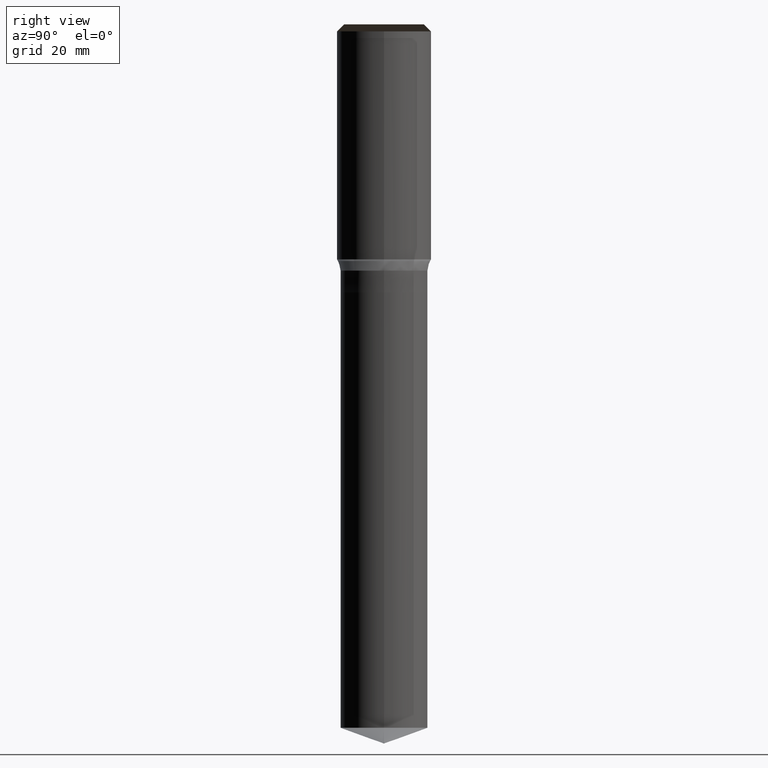
[diagram: clean part render]
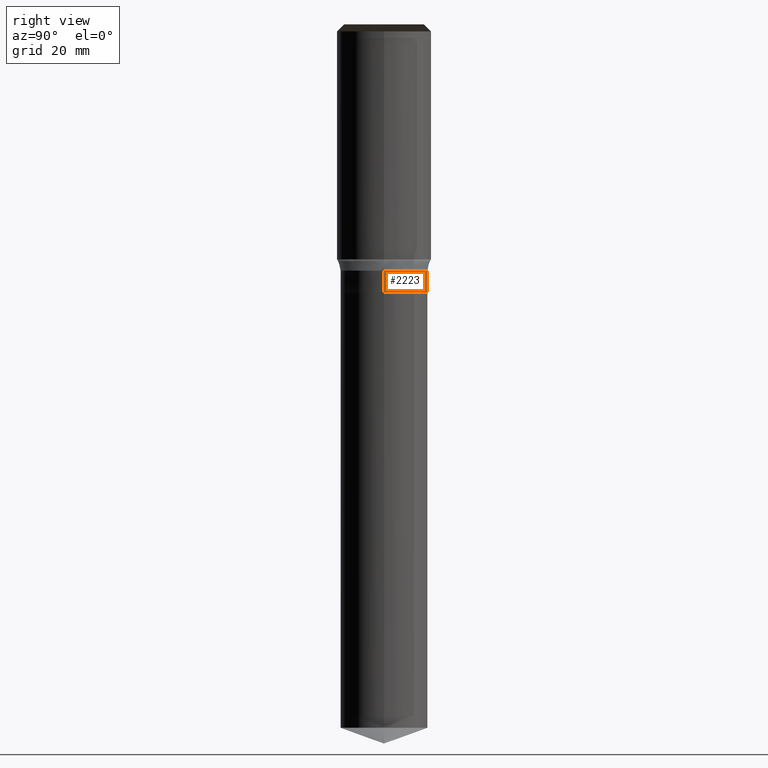
[diagram: same view with one face highlighted and labeled with its STEP entity id]
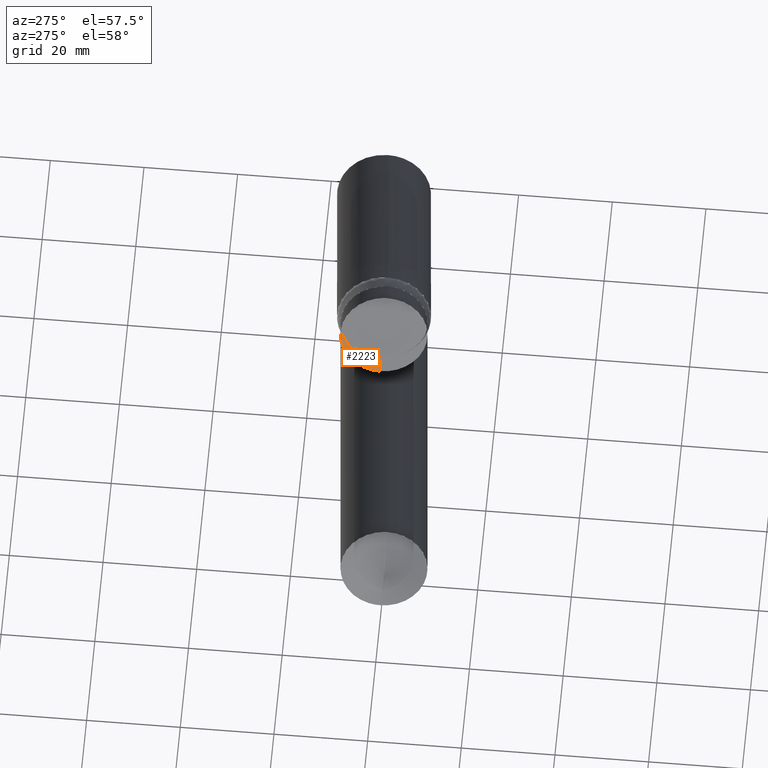
[diagram: same view with one face highlighted and labeled with its STEP entity id]
A machine part, right view. The second image highlights one B-rep face of the part: STEP entity #2223.
A second angle (auxiliary view) of the same face is appended — the face is thin or edge-on in the first view.
In plain terms, the highlighted face is a freeform B-spline surface patch.
Its self-contained STEP definition (entity closure, byte-faithful):
#2014=CARTESIAN_POINT('',(9.25,0.0,-7.000038105677));
#2015=CARTESIAN_POINT('',(9.25,9.25,-7.000038105677));
#2016=CARTESIAN_POINT('',(0.0,9.25,-7.000038105677));
#2017=CARTESIAN_POINT('',(-9.25,9.25,-7.000038105677));
#2018=CARTESIAN_POINT('',(-9.25,0.0,-7.000038105677));
#2026=CARTESIAN_POINT('',(9.25,0.0,-2.370834875401));
#2027=CARTESIAN_POINT('',(9.25,9.25,-2.370834875401));
#2028=CARTESIAN_POINT('',(0.0,9.25,-2.370834875401));
#2029=CARTESIAN_POINT('',(-9.25,9.25,-2.370834875401));
#2030=CARTESIAN_POINT('',(-9.25,0.0,-2.370834875401));
#2204=(
BOUNDED_SURFACE()
B_SPLINE_SURFACE(1,2,(
(#2014,#2015,#2016,#2017,#2018),
(#2026,#2027,#2028,#2029,#2030)
), .UNSPECIFIED.,.F.,.F.,.F.)
B_SPLINE_SURFACE_WITH_KNOTS((2,2),(3,2,3),(
0.0,1.0),(
0.0,0.5,1.0), .UNSPECIFIED.)
GEOMETRIC_REPRESENTATION_ITEM()
RATIONAL_B_SPLINE_SURFACE(((1.0,0.707106781187,1.0,0.707106781187,1.0),
(1.0,0.707106781187,1.0,0.707106781187,1.0)
))
REPRESENTATION_ITEM('')
SURFACE()
);
#2205=(
BOUNDED_CURVE()
B_SPLINE_CURVE(2,(#2018,#2017,#2016,#2015,#2014),.UNSPECIFIED.,.F.,.F.)
B_SPLINE_CURVE_WITH_KNOTS((3,2,3),
(0.0,0.5,1.0),.UNSPECIFIED.)
CURVE()
GEOMETRIC_REPRESENTATION_ITEM()
RATIONAL_B_SPLINE_CURVE((1.0,0.707106781187,1.0,0.707106781187,1.0))
REPRESENTATION_ITEM('')
);
#2206=(
BOUNDED_CURVE()
B_SPLINE_CURVE(1,(#2014,#2026),.UNSPECIFIED.,.F.,.F.)
B_SPLINE_CURVE_WITH_KNOTS((2,2),
(0.0,1.0),.UNSPECIFIED.)
CURVE()
GEOMETRIC_REPRESENTATION_ITEM()
RATIONAL_B_SPLINE_CURVE((1.0,1.0))
REPRESENTATION_ITEM('')
);
#2207=(
BOUNDED_CURVE()
B_SPLINE_CURVE(2,(#2026,#2027,#2028,#2029,#2030),.UNSPECIFIED.,.F.,.F.)
B_SPLINE_CURVE_WITH_KNOTS((3,2,3),
(0.0,0.5,1.0),.UNSPECIFIED.)
CURVE()
GEOMETRIC_REPRESENTATION_ITEM()
RATIONAL_B_SPLINE_CURVE((1.0,0.707106781187,1.0,0.707106781187,1.0))
REPRESENTATION_ITEM('')
);
#2208=(
BOUNDED_CURVE()
B_SPLINE_CURVE(1,(#2030,#2018),.UNSPECIFIED.,.F.,.F.)
B_SPLINE_CURVE_WITH_KNOTS((2,2),
(0.0,1.0),.UNSPECIFIED.)
CURVE()
GEOMETRIC_REPRESENTATION_ITEM()
RATIONAL_B_SPLINE_CURVE((1.0,1.0))
REPRESENTATION_ITEM('')
);
#2209=VERTEX_POINT('',#2014);
#2210=VERTEX_POINT('',#2018);
#2211=VERTEX_POINT('',#2026);
#2212=VERTEX_POINT('',#2030);
#2213=EDGE_CURVE('',#2210,#2209,#2205,.T.);
#2214=EDGE_CURVE('',#2209,#2211,#2206,.T.);
#2215=EDGE_CURVE('',#2211,#2212,#2207,.T.);
#2216=EDGE_CURVE('',#2212,#2210,#2208,.T.);
#2217=ORIENTED_EDGE('',*,*,#2213,.T.);
#2218=ORIENTED_EDGE('',*,*,#2214,.T.);
#2219=ORIENTED_EDGE('',*,*,#2215,.T.);
#2220=ORIENTED_EDGE('',*,*,#2216,.T.);
#2221=EDGE_LOOP('',(#2217,#2218,#2219,#2220));
#2222=FACE_OUTER_BOUND('',#2221,.T.);
#2223=ADVANCED_FACE('',(#2222),#2204,.T.);